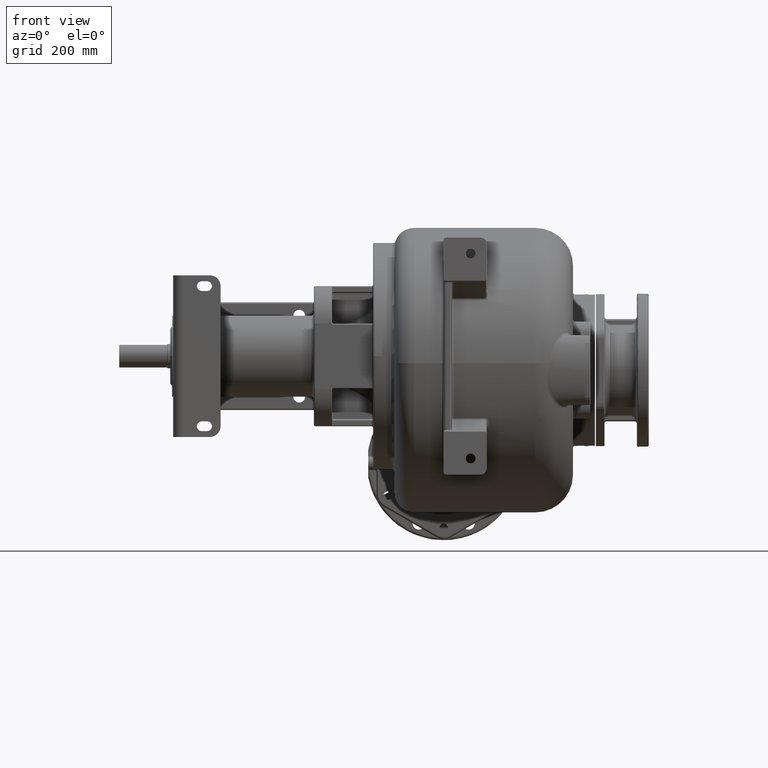
[diagram: clean part render]
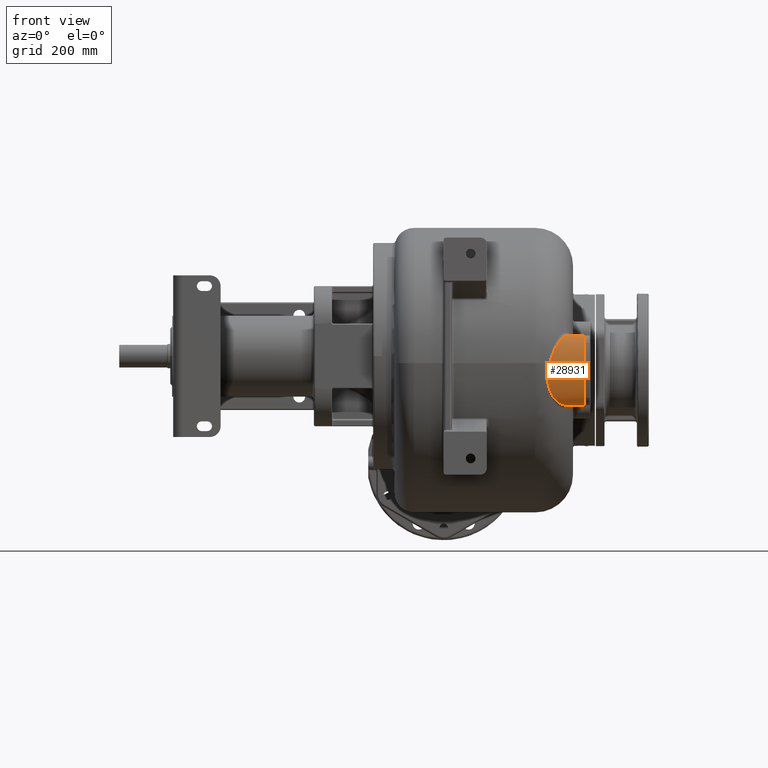
[diagram: same view with one face highlighted and labeled with its STEP entity id]
A machine part, front view. The second image highlights one B-rep face of the part: STEP entity #28931.
In plain terms, the highlighted face is a SurfaceOfExtrusion surface.
Its self-contained STEP definition (entity closure, byte-faithful):
#3774=DIRECTION('',(-1.E0,0.E0,0.E0));
#3775=VECTOR('',#3774,3.505600295029E1);
#3776=CARTESIAN_POINT('',(2.12E2,5.E1,-9.1E1));
#3777=LINE('',#3776,#3775);
#4061=CARTESIAN_POINT('',(2.12E2,4.533896815663E1,-9.021068580683E1));
#4062=CARTESIAN_POINT('',(2.12E2,4.685087049394E1,-9.072589393233E1));
#4063=CARTESIAN_POINT('',(2.12E2,4.840272479199E1,-9.1E1));
#4064=CARTESIAN_POINT('',(2.12E2,5.E1,-9.1E1));
#4066=CARTESIAN_POINT('',(2.12E2,1.6E2,-2.601E1));
#4067=DIRECTION('',(1.E0,0.E0,0.E0));
#4068=DIRECTION('',(0.E0,-9.999999993641E-1,3.566129844196E-5));
#4069=AXIS2_PLACEMENT_3D('',#4066,#4067,#4068);
#4071=CARTESIAN_POINT('',(2.12E2,2.027989303281E1,-3.485826022879E1));
#4072=CARTESIAN_POINT('',(2.12E2,2.046789636876E1,-3.781935081186E1));
#4073=CARTESIAN_POINT('',(2.12E2,2.102615073482E1,-4.360215420491E1));
#4074=CARTESIAN_POINT('',(2.12E2,2.238105078462E1,-5.188057609132E1));
#4075=CARTESIAN_POINT('',(2.12E2,2.425376720608E1,-5.976298697147E1));
#4076=CARTESIAN_POINT('',(2.12E2,2.667424129776E1,-6.722648860494E1));
#4077=CARTESIAN_POINT('',(2.12E2,2.920331683616E1,-7.305449993602E1));
#4078=CARTESIAN_POINT('',(2.12E2,3.160182059322E1,-7.742993374212E1));
#4079=CARTESIAN_POINT('',(2.12E2,3.361744028887E1,-8.054575116811E1));
#4080=CARTESIAN_POINT('',(2.12E2,3.589057920426E1,-8.346462533212E1));
#4081=CARTESIAN_POINT('',(2.12E2,3.805142325109E1,-8.569316184229E1));
#4082=CARTESIAN_POINT('',(2.12E2,3.999483569137E1,-8.731176623942E1));
#4083=CARTESIAN_POINT('',(2.12E2,4.158231219447E1,-8.842636263551E1));
#4084=CARTESIAN_POINT('',(2.12E2,4.333106904163E1,-8.941761648231E1));
#4085=CARTESIAN_POINT('',(2.12E2,4.463685149306E1,-8.997142682747E1));
#4086=CARTESIAN_POINT('',(2.12E2,4.533896815663E1,-9.021068580683E1));
#4088=CARTESIAN_POINT('',(1.462984650944E2,2.054199954399E1,-1.370023787084E1));
#4089=CARTESIAN_POINT('',(1.461364894810E2,2.048666334358E1,-1.432239816399E1));
#4090=CARTESIAN_POINT('',(1.458235308098E2,2.038531528123E1,-1.555978004328E1));
#4091=CARTESIAN_POINT('',(1.453873220821E2,2.026012029940E1,-1.739332328976E1));
#4092=CARTESIAN_POINT('',(1.449846388779E2,2.016065770588E1,-1.920173134437E1));
#4093=CARTESIAN_POINT('',(1.446155663781E2,2.008578132063E1,-2.098269073991E1));
#4094=CARTESIAN_POINT('',(1.442802188287E2,2.003431782170E1,-2.273395162403E1));
#4095=CARTESIAN_POINT('',(1.439785006153E2,2.000506470690E1,-2.445310563073E1));
#4096=CARTESIAN_POINT('',(1.437100417187E2,1.999677321120E1,-2.613864405477E1));
#4097=CARTESIAN_POINT('',(1.434741773043E2,2.000821978459E1,-2.779087789270E1));
#4098=CARTESIAN_POINT('',(1.432701751517E2,2.003825932797E1,-2.940994427287E1));
#4099=CARTESIAN_POINT('',(1.430972593609E2,2.008580161257E1,-3.099586402216E1));
#4100=CARTESIAN_POINT('',(1.429546244433E2,2.014980486831E1,-3.254858342025E1));
#4101=CARTESIAN_POINT('',(1.428414364042E2,2.022924848322E1,-3.406781470100E1));
#4102=CARTESIAN_POINT('',(1.427566203398E2,2.032328821732E1,-3.555552123159E1));
#4103=CARTESIAN_POINT('',(1.426991870537E2,2.043128915380E1,-3.701471362251E1));
#4104=CARTESIAN_POINT('',(1.426683930387E2,2.055275462438E1,-3.844819576106E1));
#4105=CARTESIAN_POINT('',(1.426635215581E2,2.068737668435E1,-3.985923066920E1));
#4106=CARTESIAN_POINT('',(1.426840682354E2,2.083501417158E1,-4.125115894190E1));
#4107=CARTESIAN_POINT('',(1.427298027375E2,2.099569696938E1,-4.262733975817E1));
#4108=CARTESIAN_POINT('',(1.428003925565E2,2.116921458796E1,-4.398810969216E1));
#4109=CARTESIAN_POINT('',(1.428955628044E2,2.135537664665E1,-4.533378797136E1));
#4110=CARTESIAN_POINT('',(1.430150777122E2,2.155404194987E1,-4.666481340540E1));
#4111=CARTESIAN_POINT('',(1.431586363197E2,2.176519925822E1,-4.798219659846E1));
#4112=CARTESIAN_POINT('',(1.433260936363E2,2.198889368343E1,-4.928691005515E1));
#4113=CARTESIAN_POINT('',(1.435173359786E2,2.222521606730E1,-5.057984296749E1));
#4114=CARTESIAN_POINT('',(1.437321744395E2,2.247426903903E1,-5.186164984550E1));
#4115=CARTESIAN_POINT('',(1.439705837477E2,2.273622550866E1,-5.313307690992E1));
#4116=CARTESIAN_POINT('',(1.442324698826E2,2.301123027242E1,-5.439447891795E1));
#4117=CARTESIAN_POINT('',(1.445176348978E2,2.329937811582E1,-5.564583190848E1));
#4118=CARTESIAN_POINT('',(1.448259958942E2,2.360082013996E1,-5.688723524096E1));
#4119=CARTESIAN_POINT('',(1.451573185917E2,2.391562158479E1,-5.811832659606E1));
#4120=CARTESIAN_POINT('',(1.455112923120E2,2.424380222125E1,-5.933854520759E1));
#4121=CARTESIAN_POINT('',(1.458876536214E2,2.458540758252E1,-6.054740699233E1));
#4122=CARTESIAN_POINT('',(1.462859345794E2,2.494034271083E1,-6.174393887296E1));
#4123=CARTESIAN_POINT('',(1.467056088698E2,2.530847326076E1,-6.292711500998E1));
#4124=CARTESIAN_POINT('',(1.471461256419E2,2.568964787553E1,-6.409592686012E1));
#4125=CARTESIAN_POINT('',(1.476067506533E2,2.608356948029E1,-6.524902042488E1));
#4126=CARTESIAN_POINT('',(1.480867013779E2,2.648990889058E1,-6.638509232576E1));
#4127=CARTESIAN_POINT('',(1.485851308870E2,2.690828588574E1,-6.750283265513E1));
#4128=CARTESIAN_POINT('',(1.491010908123E2,2.733821859634E1,-6.860081472429E1));
#4129=CARTESIAN_POINT('',(1.496335737814E2,2.777918507212E1,-6.967768030084E1));
#4130=CARTESIAN_POINT('',(1.501815333594E2,2.823061769061E1,-7.073212570564E1));
#4131=CARTESIAN_POINT('',(1.507439151278E2,2.869191040667E1,-7.176292157703E1));
#4132=CARTESIAN_POINT('',(1.513195894945E2,2.916240213661E1,-7.276887949334E1));
#4133=CARTESIAN_POINT('',(1.519074707525E2,2.964143502476E1,-7.374897782708E1));
#4134=CARTESIAN_POINT('',(1.525065182215E2,3.012835644916E1,-7.470234419588E1));
#4135=CARTESIAN_POINT('',(1.531156201487E2,3.062245669078E1,-7.562812906266E1));
#4136=CARTESIAN_POINT('',(1.537337975272E2,3.112308974931E1,-7.652572936054E1));
#4137=CARTESIAN_POINT('',(1.543601142175E2,3.162962418014E1,-7.739466535084E1));
#4138=CARTESIAN_POINT('',(1.549935973796E2,3.214139063129E1,-7.823448886640E1));
#4139=CARTESIAN_POINT('',(1.556334685827E2,3.265783455159E1,-7.904502303233E1));
#4140=CARTESIAN_POINT('',(1.562789663260E2,3.317841012634E1,-7.982615743068E1));
#4141=CARTESIAN_POINT('',(1.569293511782E2,3.370256932495E1,-8.057783310904E1));
#4142=CARTESIAN_POINT('',(1.575840776309E2,3.422989473001E1,-8.130021586389E1));
#4143=CARTESIAN_POINT('',(1.582425971407E2,3.475997285531E1,-8.199349065863E1));
#4144=CARTESIAN_POINT('',(1.589044377432E2,3.529242088583E1,-8.265789850912E1));
#4145=CARTESIAN_POINT('',(1.595692630940E2,3.582696675753E1,-8.329381857855E1));
#4146=CARTESIAN_POINT('',(1.602367370560E2,3.636334875896E1,-8.390162717208E1));
#4147=CARTESIAN_POINT('',(1.609066231246E2,3.690134926086E1,-8.448173598881E1));
#4148=CARTESIAN_POINT('',(1.615787508800E2,3.744083653715E1,-8.503462303264E1));
#4149=CARTESIAN_POINT('',(1.622529714029E2,3.798170281961E1,-8.556075450601E1));
#4150=CARTESIAN_POINT('',(1.629292062111E2,3.852386770369E1,-8.606058701679E1));
#4151=CARTESIAN_POINT('',(1.636073768399E2,3.906731134226E1,-8.653459207347E1));
#4152=CARTESIAN_POINT('',(1.642874517841E2,3.961204889004E1,-8.698322313522E1));
#4153=CARTESIAN_POINT('',(1.649693759089E2,4.015807490218E1,-8.740687047158E1));
#4154=CARTESIAN_POINT('',(1.656530717698E2,4.070543930733E1,-8.780592365731E1));
#4155=CARTESIAN_POINT('',(1.663384903066E2,4.125420606426E1,-8.818073080556E1));
#4156=CARTESIAN_POINT('',(1.670253721922E2,4.180431747620E1,-8.853151877330E1));
#4157=CARTESIAN_POINT('',(1.677135024487E2,4.235580527824E1,-8.885854247924E1));
#4158=CARTESIAN_POINT('',(1.684024870601E2,4.290858632073E1,-8.916195469276E1));
#4159=CARTESIAN_POINT('',(1.690916935492E2,4.346243526616E1,-8.944182728830E1));
#4160=CARTESIAN_POINT('',(1.697805414246E2,4.401723065894E1,-8.969828423535E1));
#4161=CARTESIAN_POINT('',(1.704679655731E2,4.457251197372E1,-8.993130504304E1));
#4162=CARTESIAN_POINT('',(1.711529230045E2,4.512784364434E1,-9.014093158162E1));
#4163=CARTESIAN_POINT('',(1.718340739107E2,4.568268291621E1,-9.032721132976E1));
#4164=CARTESIAN_POINT('',(1.725098351042E2,4.623620020693E1,-9.049017846122E1));
#4165=CARTESIAN_POINT('',(1.731786079831E2,4.678767425416E1,-9.063000001844E1));
#4166=CARTESIAN_POINT('',(1.738385002301E2,4.733609548486E1,-9.074687209545E1));
#4167=CARTESIAN_POINT('',(1.744876351278E2,4.788039811764E1,-9.084112253327E1));
#4168=CARTESIAN_POINT('',(1.751244016589E2,4.841983911612E1,-9.091325272237E1));
#4169=CARTESIAN_POINT('',(1.757474473657E2,4.895362290326E1,-9.096384729683E1));
#4170=CARTESIAN_POINT('',(1.763554638748E2,4.948113367658E1,-9.099358188442E1));
#4171=CARTESIAN_POINT('',(1.767496451496E2,4.982782238214E1,-9.099999977246E1));
#4172=CARTESIAN_POINT('',(1.769439970497E2,5.E1,-9.1E1));
#4174=CARTESIAN_POINT('',(1.819921918330E2,5.E1,3.9E1));
#4175=CARTESIAN_POINT('',(1.818443684800E2,4.983871767748E1,3.899999978825E1));
#4176=CARTESIAN_POINT('',(1.815447608182E2,4.951427272206E1,3.899436616702E1));
#4177=CARTESIAN_POINT('',(1.810834409489E2,4.902179811321E1,3.896839305443E1));
#4178=CARTESIAN_POINT('',(1.806108634909E2,4.852401957988E1,3.892430763076E1));
#4179=CARTESIAN_POINT('',(1.801275700687E2,4.802121346453E1,3.886154142852E1));
#4180=CARTESIAN_POINT('',(1.796341158837E2,4.751372490898E1,3.877955195122E1));
#4181=CARTESIAN_POINT('',(1.791311677735E2,4.700188735244E1,3.867782048890E1));
#4182=CARTESIAN_POINT('',(1.786195622879E2,4.648620580200E1,3.855589508047E1));
#4183=CARTESIAN_POINT('',(1.781001576746E2,4.596721918927E1,3.841338723480E1));
#4184=CARTESIAN_POINT('',(1.775737639733E2,4.544533765009E1,3.824992128401E1));
#4185=CARTESIAN_POINT('',(1.770411387666E2,4.492100046248E1,3.806516761365E1));
#4186=CARTESIAN_POINT('',(1.765030383686E2,4.439459826372E1,3.785882068929E1));
#4187=CARTESIAN_POINT('',(1.759600105684E2,4.386636433824E1,3.763053537754E1));
#4188=CARTESIAN_POINT('',(1.754126706869E2,4.333662685031E1,3.738002226514E1));
#4189=CARTESIAN_POINT('',(1.748613846464E2,4.280549976992E1,3.710690254445E1));
#4190=CARTESIAN_POINT('',(1.743064672488E2,4.227307909135E1,3.681077022362E1));
#4191=CARTESIAN_POINT('',(1.737481977858E2,4.173948328583E1,3.649121871838E1));
#4192=CARTESIAN_POINT('',(1.731866063367E2,4.120462185257E1,3.614768572276E1));
#4193=CARTESIAN_POINT('',(1.726218071389E2,4.066850683884E1,3.577962464690E1));
#4194=CARTESIAN_POINT('',(1.720537480821E2,4.013107800793E1,3.538639713483E1));
#4195=CARTESIAN_POINT('',(1.714823118920E2,3.959220355833E1,3.496724709809E1));
#4196=CARTESIAN_POINT('',(1.709074392135E2,3.905185827554E1,3.452143345861E1));
#4197=CARTESIAN_POINT('',(1.703289105618E2,3.850993059436E1,3.404807749537E1));
#4198=CARTESIAN_POINT('',(1.697465571689E2,3.796633874047E1,3.354624096768E1));
#4199=CARTESIAN_POINT('',(1.691602152907E2,3.742107922390E1,3.301497881797E1));
#4200=CARTESIAN_POINT('',(1.685696296057E2,3.687408893233E1,3.245320409909E1));
#4201=CARTESIAN_POINT('',(1.679746246703E2,3.632538438731E1,3.185981496435E1));
#4202=CARTESIAN_POINT('',(1.673750137408E2,3.577503669188E1,3.123368062804E1));
#4203=CARTESIAN_POINT('',(1.667705851835E2,3.522310501148E1,3.057356160887E1));
#4204=CARTESIAN_POINT('',(1.661612005249E2,3.466974156092E1,2.987822849301E1));
#4205=CARTESIAN_POINT('',(1.655467221335E2,3.411514439609E1,2.914641559757E1));
#4206=CARTESIAN_POINT('',(1.649270283680E2,3.355953916684E1,2.837679310950E1));
#4207=CARTESIAN_POINT('',(1.643020520935E2,3.300324015173E1,2.756805179549E1));
#4208=CARTESIAN_POINT('',(1.636717613392E2,3.244661792789E1,2.671886784388E1));
#4209=CARTESIAN_POINT('',(1.630361629986E2,3.189010089597E1,2.582790688764E1));
#4210=CARTESIAN_POINT('',(1.623953009500E2,3.133419615324E1,2.489386413829E1));
#4211=CARTESIAN_POINT('',(1.617492719888E2,3.077945862061E1,2.391542062694E1));
#4212=CARTESIAN_POINT('',(1.610982025905E2,3.022650628452E1,2.289127045913E1));
#4213=CARTESIAN_POINT('',(1.604422422619E2,2.967602537185E1,2.182013652100E1));
#4214=CARTESIAN_POINT('',(1.59781646E2,2.912878608833E1,2.070081145734E1));
#4215=CARTESIAN_POINT('',(1.591166813886E2,2.858562279607E1,1.953213320086E1));
#4216=CARTESIAN_POINT('',(1.584476353827E2,2.804742953345E1,1.831297637316E1));
#4217=CARTESIAN_POINT('',(1.577750697030E2,2.751529515056E1,1.704259361738E1));
#4218=CARTESIAN_POINT('',(1.570995076035E2,2.699033293249E1,1.572027884050E1));
#4219=CARTESIAN_POINT('',(1.564215262449E2,2.647371521589E1,1.434544280231E1));
#4220=CARTESIAN_POINT('',(1.557420296413E2,2.596680858021E1,1.291803793604E1));
#4221=CARTESIAN_POINT('',(1.550617949572E2,2.547093537592E1,1.143797355648E1));
#4222=CARTESIAN_POINT('',(1.543817734470E2,2.498752051393E1,9.905528080502E0));
#4223=CARTESIAN_POINT('',(1.537033475220E2,2.451820625461E1,8.321875648770E0));
#4224=CARTESIAN_POINT('',(1.530276777949E2,2.406450593290E1,6.688065963701E0));
#4225=CARTESIAN_POINT('',(1.523561658927E2,2.362799963263E1,5.005677328129E0));
#4226=CARTESIAN_POINT('',(1.516905220102E2,2.321033835750E1,3.277043569732E0));
#4227=CARTESIAN_POINT('',(1.510321288845E2,2.281296563306E1,1.504164175921E0));
#4228=CARTESIAN_POINT('',(1.503830720305E2,2.243756801261E1,
-3.092590805458E-1));
#4229=CARTESIAN_POINT('',(1.497458091380E2,2.208584735970E1,-2.158250218272E0));
#4230=CARTESIAN_POINT('',(1.491224123359E2,2.175919307458E1,-4.038063895204E0));
#4231=CARTESIAN_POINT('',(1.485152923600E2,2.145886685443E1,-5.943202705896E0));
#4232=CARTESIAN_POINT('',(1.479267920143E2,2.118588673817E1,-7.867919767075E0));
#4233=CARTESIAN_POINT('',(1.473589950716E2,2.094101040250E1,-9.806276479706E0));
#4234=CARTESIAN_POINT('',(1.468139986117E2,2.072468137483E1,-1.175285083755E1));
#4235=CARTESIAN_POINT('',(1.464674867032E2,2.059974197094E1,-1.305102967585E1));
#4236=CARTESIAN_POINT('',(1.462984650944E2,2.054199954399E1,-1.370023787084E1));
#4238=DIRECTION('',(-1.E0,0.E0,0.E0));
#4239=VECTOR('',#4238,3.000780816702E1);
#4240=CARTESIAN_POINT('',(2.12E2,5.E1,3.9E1));
#4241=LINE('',#4240,#4239);
#4242=CARTESIAN_POINT('',(2.12E2,4.518037578433E1,3.815569962316E1));
#4243=CARTESIAN_POINT('',(2.12E2,4.452932561701E1,3.792609713447E1));
#4244=CARTESIAN_POINT('',(2.12E2,4.331041563771E1,3.740213800896E1));
#4245=CARTESIAN_POINT('',(2.12E2,4.166463704167E1,3.647407677547E1));
#4246=CARTESIAN_POINT('',(2.12E2,4.016158509969E1,3.543491921524E1));
#4247=CARTESIAN_POINT('',(2.12E2,3.831270875068E1,3.392857592707E1));
#4248=CARTESIAN_POINT('',(2.12E2,3.624433104193E1,3.185671891028E1));
#4249=CARTESIAN_POINT('',(2.12E2,3.405480360446E1,2.914279270291E1));
#4250=CARTESIAN_POINT('',(2.12E2,3.210203877705E1,2.624457396474E1));
#4251=CARTESIAN_POINT('',(2.12E2,2.976480151693E1,2.217288219674E1));
#4252=CARTESIAN_POINT('',(2.12E2,2.727613556396E1,1.674631958193E1));
#4253=CARTESIAN_POINT('',(2.12E2,2.485531505631E1,9.794206358618E0));
#4254=CARTESIAN_POINT('',(2.12E2,2.293515115283E1,2.452389403693E0));
#4255=CARTESIAN_POINT('',(2.12E2,2.148307241667E1,-5.253778155799E0));
#4256=CARTESIAN_POINT('',(2.12E2,2.082205074219E1,-1.063021146374E1));
#4257=CARTESIAN_POINT('',(2.12E2,2.057085227602E1,-1.338016369996E1));
#4274=CARTESIAN_POINT('',(2.12E2,5.E1,3.9E1));
#4275=CARTESIAN_POINT('',(2.12E2,4.834528668704E1,3.9E1));
#4276=CARTESIAN_POINT('',(2.12E2,4.674088974593E1,3.870603799523E1));
#4277=CARTESIAN_POINT('',(2.12E2,4.518037578433E1,3.815569962316E1));
#4299=CARTESIAN_POINT('',(2.12E2,2.057085227599E1,-1.338016370033E1));
#4300=CARTESIAN_POINT('',(2.12E2,2.018724515490E1,-1.757963703553E1));
#4301=CARTESIAN_POINT('',(2.12E2,1.999985015243E1,-2.178804990197E1));
#4302=CARTESIAN_POINT('',(2.12E2,2.000000008902E1,-2.600500741822E1));
#22095=CARTESIAN_POINT('',(2.12E2,5.E1,-9.1E1));
#22096=CARTESIAN_POINT('',(1.769439970497E2,5.E1,-9.1E1));
#22097=VERTEX_POINT('',#22095);
#22098=VERTEX_POINT('',#22096);
#22099=CARTESIAN_POINT('',(2.12E2,5.E1,3.9E1));
#22100=CARTESIAN_POINT('',(1.819921918330E2,5.E1,3.9E1));
#22101=VERTEX_POINT('',#22099);
#22102=VERTEX_POINT('',#22100);
#22191=VERTEX_POINT('',#4088);
#23091=CARTESIAN_POINT('',(2.12E2,4.518037578433E1,3.815569962316E1));
#23093=VERTEX_POINT('',#23091);
#23094=CARTESIAN_POINT('',(2.12E2,2.057085227599E1,-1.338016370033E1));
#23095=CARTESIAN_POINT('',(2.12E2,2.000000008902E1,-2.600500741822E1));
#23096=VERTEX_POINT('',#23094);
#23097=VERTEX_POINT('',#23095);
#23098=CARTESIAN_POINT('',(2.12E2,2.027989303273E1,-3.485826022753E1));
#23099=VERTEX_POINT('',#23098);
#23100=CARTESIAN_POINT('',(2.12E2,4.533896815663E1,-9.021068580683E1));
#23102=VERTEX_POINT('',#23100);
#28907=CARTESIAN_POINT('',(2.12E2,5.E1,-2.6E1));
#28908=DIRECTION('',(1.E0,0.E0,0.E0));
#28909=DIRECTION('',(0.E0,0.E0,-1.E0));
#28910=AXIS2_PLACEMENT_3D('',#28907,#28908,#28909);
#28912=DIRECTION('',(1.E0,0.E0,0.E0));
#28913=VECTOR('',#28912,1.E0);
#28914=SURFACE_OF_LINEAR_EXTRUSION('',#28911,#28913);
#28915=ORIENTED_EDGE('',*,*,#28579,.T.);
#28917=ORIENTED_EDGE('',*,*,#28916,.T.);
#28918=ORIENTED_EDGE('',*,*,#28902,.T.);
#28919=ORIENTED_EDGE('',*,*,#28498,.T.);
#28920=ORIENTED_EDGE('',*,*,#28051,.F.);
#28921=ORIENTED_EDGE('',*,*,#28171,.F.);
#28922=ORIENTED_EDGE('',*,*,#28494,.F.);
#28924=ORIENTED_EDGE('',*,*,#28923,.T.);
#28926=ORIENTED_EDGE('',*,*,#28925,.T.);
#28928=ORIENTED_EDGE('',*,*,#28927,.T.);
#28929=EDGE_LOOP('',(#28915,#28917,#28918,#28919,#28920,#28921,#28922,#28924,
#28926,#28928));
#28930=FACE_OUTER_BOUND('',#28929,.F.);
#28931=ADVANCED_FACE('',(#28930),#28914,.T.);
#4065=B_SPLINE_CURVE_WITH_KNOTS('',3,(#4061,#4062,#4063,#4064),.UNSPECIFIED.,
.F.,.F.,(4,4),(0.E0,1.E0),.UNSPECIFIED.);
#4070=CIRCLE('',#4069,1.4E2);
#4087=B_SPLINE_CURVE_WITH_KNOTS('',3,(#4071,#4072,#4073,#4074,#4075,#4076,#4077,
#4078,#4079,#4080,#4081,#4082,#4083,#4084,#4085,#4086),.UNSPECIFIED.,.F.,.F.,(4,
1,1,1,1,1,1,1,1,1,1,1,1,4),(0.E0,1.25E-1,2.5E-1,3.75E-1,5.E-1,6.25E-1,6.875E-1,
7.5E-1,8.125E-1,8.75E-1,9.0625E-1,9.375E-1,9.6875E-1,1.E0),.UNSPECIFIED.);
#4173=B_SPLINE_CURVE_WITH_KNOTS('',3,(#4088,#4089,#4090,#4091,#4092,#4093,#4094,
#4095,#4096,#4097,#4098,#4099,#4100,#4101,#4102,#4103,#4104,#4105,#4106,#4107,
#4108,#4109,#4110,#4111,#4112,#4113,#4114,#4115,#4116,#4117,#4118,#4119,#4120,
#4121,#4122,#4123,#4124,#4125,#4126,#4127,#4128,#4129,#4130,#4131,#4132,#4133,
#4134,#4135,#4136,#4137,#4138,#4139,#4140,#4141,#4142,#4143,#4144,#4145,#4146,
#4147,#4148,#4149,#4150,#4151,#4152,#4153,#4154,#4155,#4156,#4157,#4158,#4159,
#4160,#4161,#4162,#4163,#4164,#4165,#4166,#4167,#4168,#4169,#4170,#4171,#4172),
.UNSPECIFIED.,.F.,.F.,(4,1,1,1,1,1,1,1,1,1,1,1,1,1,1,1,1,1,1,1,1,1,1,1,1,1,1,1,
1,1,1,1,1,1,1,1,1,1,1,1,1,1,1,1,1,1,1,1,1,1,1,1,1,1,1,1,1,1,1,1,1,1,1,1,1,1,1,1,
1,1,1,1,1,1,1,1,1,1,1,1,1,1,4),(0.E0,1.219512195122E-2,2.439024390244E-2,
3.658536585366E-2,4.878048780488E-2,6.097560975610E-2,7.317073170732E-2,
8.536585365854E-2,9.756097560976E-2,1.097560975610E-1,1.219512195122E-1,
1.341463414634E-1,1.463414634146E-1,1.585365853659E-1,1.707317073171E-1,
1.829268292683E-1,1.951219512195E-1,2.073170731707E-1,2.195121951220E-1,
2.317073170732E-1,2.439024390244E-1,2.560975609756E-1,2.682926829268E-1,
2.804878048780E-1,2.926829268293E-1,3.048780487805E-1,3.170731707317E-1,
3.292682926829E-1,3.414634146341E-1,3.536585365854E-1,3.658536585366E-1,
3.780487804878E-1,3.902439024390E-1,4.024390243902E-1,4.146341463415E-1,
4.268292682927E-1,4.390243902439E-1,4.512195121951E-1,4.634146341463E-1,
4.756097560976E-1,4.878048780488E-1,5.E-1,5.121951219512E-1,5.243902439024E-1,
5.365853658537E-1,5.487804878049E-1,5.609756097561E-1,5.731707317073E-1,
5.853658536585E-1,5.975609756098E-1,6.097560975610E-1,6.219512195122E-1,
6.341463414634E-1,6.463414634146E-1,6.585365853659E-1,6.707317073171E-1,
6.829268292683E-1,6.951219512195E-1,7.073170731707E-1,7.195121951220E-1,
7.317073170732E-1,7.439024390244E-1,7.560975609756E-1,7.682926829268E-1,
7.804878048780E-1,7.926829268293E-1,8.048780487805E-1,8.170731707317E-1,
8.292682926829E-1,8.414634146341E-1,8.536585365854E-1,8.658536585366E-1,
8.780487804878E-1,8.902439024390E-1,9.024390243902E-1,9.146341463415E-1,
9.268292682927E-1,9.390243902439E-1,9.512195121951E-1,9.634146341463E-1,
9.756097560976E-1,9.878048780488E-1,1.E0),.UNSPECIFIED.);
#4237=B_SPLINE_CURVE_WITH_KNOTS('',3,(#4174,#4175,#4176,#4177,#4178,#4179,#4180,
#4181,#4182,#4183,#4184,#4185,#4186,#4187,#4188,#4189,#4190,#4191,#4192,#4193,
#4194,#4195,#4196,#4197,#4198,#4199,#4200,#4201,#4202,#4203,#4204,#4205,#4206,
#4207,#4208,#4209,#4210,#4211,#4212,#4213,#4214,#4215,#4216,#4217,#4218,#4219,
#4220,#4221,#4222,#4223,#4224,#4225,#4226,#4227,#4228,#4229,#4230,#4231,#4232,
#4233,#4234,#4235,#4236),.UNSPECIFIED.,.F.,.F.,(4,1,1,1,1,1,1,1,1,1,1,1,1,1,1,1,
1,1,1,1,1,1,1,1,1,1,1,1,1,1,1,1,1,1,1,1,1,1,1,1,1,1,1,1,1,1,1,1,1,1,1,1,1,1,1,1,
1,1,1,1,4),(0.E0,1.666666666667E-2,3.333333333333E-2,5.E-2,6.666666666667E-2,
8.333333333333E-2,1.E-1,1.166666666667E-1,1.333333333333E-1,1.5E-1,
1.666666666667E-1,1.833333333333E-1,2.E-1,2.166666666667E-1,2.333333333333E-1,
2.5E-1,2.666666666667E-1,2.833333333333E-1,3.E-1,3.166666666667E-1,
3.333333333333E-1,3.5E-1,3.666666666667E-1,3.833333333333E-1,4.E-1,
4.166666666667E-1,4.333333333333E-1,4.5E-1,4.666666666667E-1,4.833333333333E-1,
5.E-1,5.166666666667E-1,5.333333333333E-1,5.5E-1,5.666666666667E-1,
5.833333333333E-1,6.E-1,6.166666666667E-1,6.333333333333E-1,6.5E-1,
6.666666666667E-1,6.833333333333E-1,7.E-1,7.166666666667E-1,7.333333333333E-1,
7.5E-1,7.666666666667E-1,7.833333333333E-1,8.E-1,8.166666666667E-1,
8.333333333333E-1,8.5E-1,8.666666666667E-1,8.833333333333E-1,9.E-1,
9.166666666667E-1,9.333333333333E-1,9.5E-1,9.666666666667E-1,9.833333333333E-1,
1.E0),.UNSPECIFIED.);
#4258=B_SPLINE_CURVE_WITH_KNOTS('',3,(#4242,#4243,#4244,#4245,#4246,#4247,#4248,
#4249,#4250,#4251,#4252,#4253,#4254,#4255,#4256,#4257),.UNSPECIFIED.,.F.,.F.,(4,
1,1,1,1,1,1,1,1,1,1,1,1,4),(0.E0,3.125E-2,6.25E-2,9.375E-2,1.25E-1,1.875E-1,
2.5E-1,3.125E-1,3.75E-1,5.E-1,6.25E-1,7.5E-1,8.75E-1,1.E0),.UNSPECIFIED.);
#4278=B_SPLINE_CURVE_WITH_KNOTS('',3,(#4274,#4275,#4276,#4277),.UNSPECIFIED.,
.F.,.F.,(4,4),(0.E0,1.E0),.UNSPECIFIED.);
#4303=B_SPLINE_CURVE_WITH_KNOTS('',3,(#4299,#4300,#4301,#4302),.UNSPECIFIED.,
.F.,.F.,(4,4),(0.E0,1.E0),.UNSPECIFIED.);
#28051=EDGE_CURVE('',#22191,#22098,#4173,.T.);
#28171=EDGE_CURVE('',#22102,#22191,#4237,.T.);
#28494=EDGE_CURVE('',#22101,#22102,#4241,.T.);
#28498=EDGE_CURVE('',#22097,#22098,#3777,.T.);
#28579=EDGE_CURVE('',#23097,#23099,#4070,.T.);
#28902=EDGE_CURVE('',#23102,#22097,#4065,.T.);
#28911=ELLIPSE('',#28910,6.5E1,3.E1);
#28916=EDGE_CURVE('',#23099,#23102,#4087,.T.);
#28923=EDGE_CURVE('',#22101,#23093,#4278,.T.);
#28925=EDGE_CURVE('',#23093,#23096,#4258,.T.);
#28927=EDGE_CURVE('',#23096,#23097,#4303,.T.);